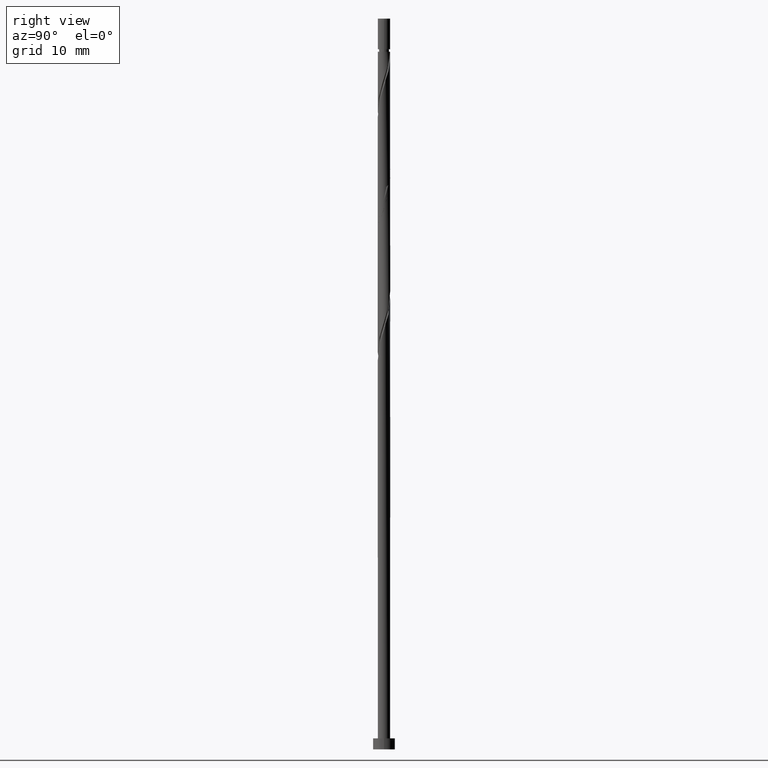
[diagram: clean part render]
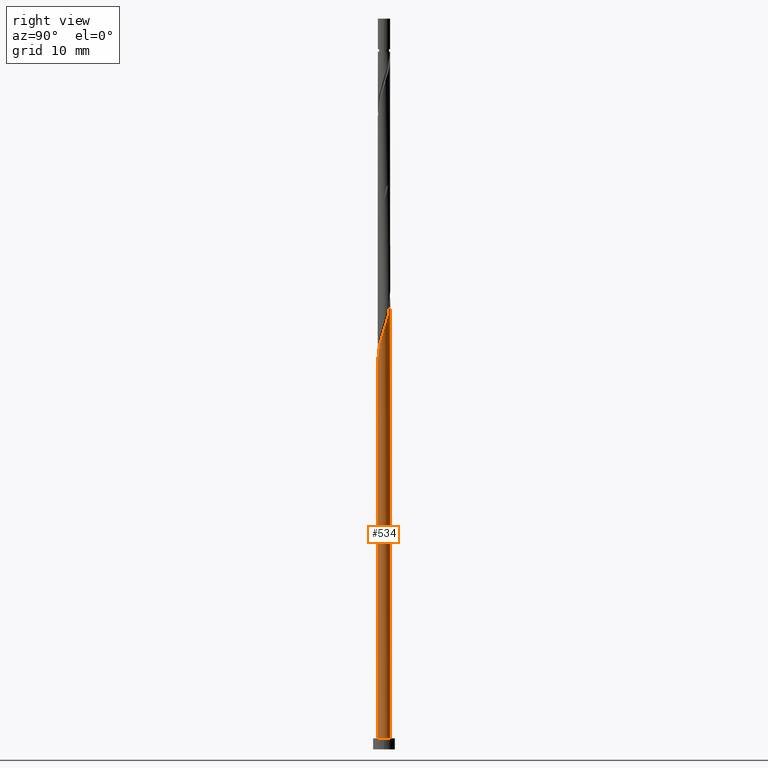
[diagram: same view with one face highlighted and labeled with its STEP entity id]
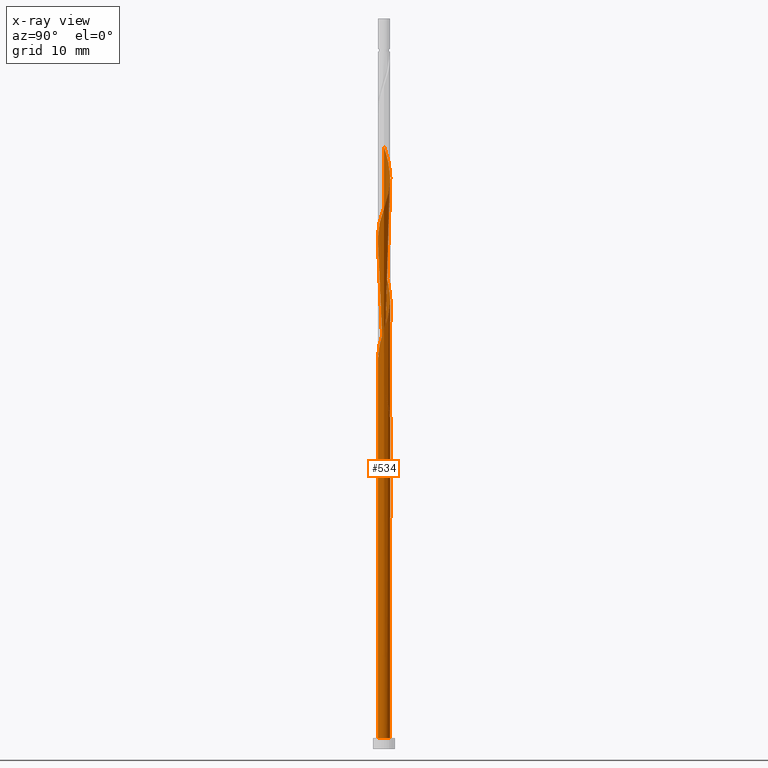
[diagram: x-ray of the same camera — body ghosted, the highlighted face saturated]
A machine part, right view. The second image highlights one B-rep face of the part: STEP entity #534.
The next image is the same camera in x-ray: the body ghosted, the highlighted face saturated — about 0% of this face is hidden behind the body in this view.
In plain terms, the highlighted cylindrical surface (bore or boss wall) has radius 0.85 mm, axis along (-0, -0, -1).
Its self-contained STEP definition (entity closure, byte-faithful):
#6 = CIRCLE ( 'NONE', #849, 0.8499999999999999778 ) ;
#17 = ORIENTED_EDGE ( 'NONE', *, *, #526, .F. ) ;
#18 = CARTESIAN_POINT ( 'NONE',  ( -0.5375555463659557054, 0.6752758173902464467, 47.77891091697247106 ) ) ;
#23 = VERTEX_POINT ( 'NONE', #1052 ) ;
#24 = CARTESIAN_POINT ( 'NONE',  ( -0.1259557794782407703, 0.8406159299085588232, 46.39002202808356401 ) ) ;
#30 = AXIS2_PLACEMENT_3D ( 'NONE', #94, #1262, #940 ) ;
#33 = LINE ( 'NONE', #450, #51 ) ;
#51 = VECTOR ( 'NONE', #771, 1000.000000000000000 ) ;
#53 = CARTESIAN_POINT ( 'NONE',  ( 0.8497170766525296015, 0.02192919617954579639, 57.50113313919468538 ) ) ;
#60 = CARTESIAN_POINT ( 'NONE',  ( -0.7583624014087694265, 0.4121284546235435275, 64.44557758363912114 ) ) ;
#67 = CARTESIAN_POINT ( 'NONE',  ( -0.1691478643081253119, 0.8330000000000012950, 62.13076276882432580 ) ) ;
#74 = CARTESIAN_POINT ( 'NONE',  ( 0.8059730935065011481, -0.2700136525132811882, 73.24187387993544007 ) ) ;
#79 = ORIENTED_EDGE ( 'NONE', *, *, #1117, .F. ) ;
#81 = CARTESIAN_POINT ( 'NONE',  ( 0.2741790483344559992, 0.8184065276103787978, 60.74187387993540455 ) ) ;
#94 = CARTESIAN_POINT ( 'NONE',  ( 0.000000000000000000, 0.000000000000000000, 1.500000000000000000 ) ) ;
#117 = CYLINDRICAL_SURFACE ( 'NONE', #315, 0.8499999999999999778 ) ;
#130 = VERTEX_POINT ( 'NONE', #845 ) ;
#131 = CARTESIAN_POINT ( 'NONE',  ( -0.6368252291983756974, 0.5629863474867208284, 48.24187387993542586 ) ) ;
#150 = CARTESIAN_POINT ( 'NONE',  ( -0.7909726398658113444, 0.3112270601726522257, 49.16779980586134968 ) ) ;
#163 = CARTESIAN_POINT ( 'NONE',  ( 0.1259557794782414086, 0.8406159299085583791, 61.20483684289838067 ) ) ;
#168 = CARTESIAN_POINT ( 'NONE',  ( -0.02226748937797391054, 0.8628253322067379605, 61.66779980586133547 ) ) ;
#174 = CARTESIAN_POINT ( 'NONE',  ( 0.7583624014087694265, -0.4121284546235436941, 72.77891091697244974 ) ) ;
#180 = CARTESIAN_POINT ( 'NONE',  ( -0.8059730935065011481, 0.2700136525132808551, 64.90854054660209727 ) ) ;
#187 = CARTESIAN_POINT ( 'NONE',  ( 0.6650168603875703521, -0.5293888697359065976, 55.64928128734284485 ) ) ;
#207 = DIRECTION ( 'NONE',  ( -1.000000000000000000, 0.000000000000000000, 0.000000000000000000 ) ) ;
#221 = EDGE_CURVE ( 'NONE', #130, #757, #6, .T. ) ;
#238 = CARTESIAN_POINT ( 'NONE',  ( -0.8500000000000010880, 0.01096642318221761198, 50.12760028321403638 ) ) ;
#249 = CARTESIAN_POINT ( 'NONE',  ( -0.8458503677008266664, -0.1717572427621095188, 49.63076276882431159 ) ) ;
#262 = CARTESIAN_POINT ( 'NONE',  ( -0.1259557794782409368, -0.8406159299085583791, 69.53817017623171637 ) ) ;
#268 = CARTESIAN_POINT ( 'NONE',  ( 0.7909726398658113444, 0.3112270601726519481, 58.42705906512062342 ) ) ;
#275 = CARTESIAN_POINT ( 'NONE',  ( -0.8535837856042325367, 0.1278988504030181550, 65.37150350956505918 ) ) ;
#281 = CARTESIAN_POINT ( 'NONE',  ( -0.1259557794782409368, -0.8406159299085583791, 52.87150350956506628 ) ) ;
#289 = CARTESIAN_POINT ( 'NONE',  ( -0.02226748937797391054, 0.8628253322067379605, 78.33446647252800688 ) ) ;
#315 = AXIS2_PLACEMENT_3D ( 'NONE', #329, #1256, #207 ) ;
#329 = CARTESIAN_POINT ( 'NONE',  ( 0.000000000000000000, 0.000000000000000000, 100.0000000000000000 ) ) ;
#335 = CARTESIAN_POINT ( 'NONE',  ( -0.8497170766525294905, 0.02192919617954577904, 50.09372573178726640 ) ) ;
#354 = CARTESIAN_POINT ( 'NONE',  ( -0.8500000000000010880, -0.01096642318221814107, 49.13392525443457259 ) ) ;
#368 = CARTESIAN_POINT ( 'NONE',  ( -0.3160282392382770533, 0.8031746677932639633, 62.59372573178725929 ) ) ;
#372 = CARTESIAN_POINT ( 'NONE',  ( -0.8059730935065011481, 0.2700136525132808551, 48.24187387993543297 ) ) ;
#373 = CARTESIAN_POINT ( 'NONE',  ( 0.1691478643081254229, -0.8330000000000012950, 70.46409610215765440 ) ) ;
#379 = CIRCLE ( 'NONE', #1322, 0.8499999999999999778 ) ;
#381 = CARTESIAN_POINT ( 'NONE',  ( 0.1691478643081254229, -0.8330000000000012950, 53.79742943549097589 ) ) ;
#387 = CARTESIAN_POINT ( 'NONE',  ( 0.7909726398658113444, 0.3112270601726519481, 75.09372573178728771 ) ) ;
#393 = CARTESIAN_POINT ( 'NONE',  ( -0.7360949120307958005, -0.4506968775831945995, 67.22335536141689261 ) ) ;
#410 = CARTESIAN_POINT ( 'NONE',  ( -0.8499999999999999778, 0.000000000000000000, 100.0000000000000000 ) ) ;
#416 = FACE_OUTER_BOUND ( 'NONE', #869, .T. ) ;
#419 =( BOUNDED_CURVE ( )  B_SPLINE_CURVE ( 2, ( #1291, #354, #1187, #249, #593, #1107, #1207, #712, #1131, #1016, #281, #1329, #381, #1114, #600, #1202, #187, #612, #684, #917, #53, #1011, #268, #705, #822, #1213, #1120, #81, #163, #168, #67, #368, #798, #808, #588, #60, #180, #275, #483, #793, #908, #393, #903, #1314, #477, #1023, #262, #1320, #373, #692, #472, #698, #1125, #174, #74, #493, #1225, #606, #387, #501, #1029, #813, #927, #1338, #1220, #289, #896, #1308, #1056, #932, #1163, #962, #1041, #540, #509 ),
 .UNSPECIFIED., .F., .T. ) 
 B_SPLINE_CURVE_WITH_KNOTS ( ( 3, 2, 2, 2, 2, 2, 2, 2, 2, 2, 2, 2, 2, 2, 2, 2, 2, 2, 2, 2, 2, 2, 2, 2, 2, 2, 2, 2, 2, 2, 2, 2, 2, 2, 2, 2, 2, 3 ),
 ( 0.05452480538552911815, 0.05555555555555558023, 0.06944444444444441977, 0.08333333333333337034, 0.09722222222222220989, 0.1111111111111111605, 0.1250000000000000000, 0.1388888888888888395, 0.1527777777777777901, 0.1666666666666666297, 0.1805555555555555802, 0.1944444444444444198, 0.2083333333333333703, 0.2222222222222222099, 0.2361111111111111605, 0.2500000000000000000, 0.2638888888888888395, 0.2777777777777777901, 0.2916666666666666297, 0.3055555555555555802, 0.3194444444444444198, 0.3333333333333333703, 0.3472222222222222099, 0.3611111111111111605, 0.3750000000000000000, 0.3888888888888888395, 0.4027777777777777901, 0.4166666666666666297, 0.4305555555555555802, 0.4444444444444444198, 0.4583333333333333703, 0.4722222222222222099, 0.4861111111111111605, 0.5000000000000000000, 0.5138888888888888395, 0.5277777777777777901, 0.5416666666666667407, 0.5545248053855293957 ),
 .UNSPECIFIED. ) 
 CURVE ( )  GEOMETRIC_REPRESENTATION_ITEM ( )  RATIONAL_B_SPLINE_CURVE ( ( 0.9071930855141252525, 0.9080659294509728641, 0.9090909090909129464, 0.8952797754656475204, 0.9090909090909129464, 0.8952797754656475204, 0.9090909090909129464, 0.8952797754656475204, 0.9090909090909129464, 0.8952797754656475204, 0.9090909090909129464, 0.8952797754656475204, 0.9090909090909129464, 0.8952797754656475204, 0.9090909090909129464, 0.8952797754656475204, 0.9090909090909129464, 0.8952797754656475204, 0.9090909090909129464, 0.8952797754656475204, 0.9090909090909129464, 0.8952797754656475204, 0.9090909090909129464, 0.8952797754656475204, 0.9090909090909129464, 0.8952797754656475204, 0.9090909090909129464, 0.8952797754656475204, 0.9090909090909129464, 0.8952797754656475204, 0.9090909090909129464, 0.8952797754656475204, 0.9090909090909129464, 0.8952797754656475204, 0.9090909090909129464, 0.8952797754656475204, 0.9090909090909129464, 0.8952797754656475204, 0.9090909090909129464, 0.8952797754656475204, 0.9090909090909129464, 0.8952797754656475204, 0.9090909090909129464, 0.8952797754656475204, 0.9090909090909129464, 0.8952797754656475204, 0.9090909090909129464, 0.8952797754656475204, 0.9090909090909129464, 0.8952797754656475204, 0.9090909090909129464, 0.8952797754656475204, 0.9090909090909129464, 0.8952797754656475204, 0.9090909090909129464, 0.8952797754656475204, 0.9090909090909129464, 0.8952797754656475204, 0.9090909090909129464, 0.8952797754656475204, 0.9090909090909129464, 0.8952797754656475204, 0.9090909090909129464, 0.8952797754656475204, 0.9090909090909129464, 0.8952797754656475204, 0.9090909090909129464, 0.8952797754656475204, 0.9090909090909129464, 0.8952797754656475204, 0.9090909090909129464, 0.8952797754656475204, 0.9090909090909129464, 0.8963047551055873807, 0.9071930855141256966 ) ) 
 REPRESENTATION_ITEM ( '' )  );
#443 = CARTESIAN_POINT ( 'NONE',  ( 0.1691478643081257283, 0.8330000000000011839, 45.46409610215764019 ) ) ;
#450 = CARTESIAN_POINT ( 'NONE',  ( -0.8499999999999999778, 0.000000000000000000, 100.0000000000000000 ) ) ;
#464 = CARTESIAN_POINT ( 'NONE',  ( -0.5716713193663710557, 0.6466492848482696676, 46.85298499104653303 ) ) ;
#472 = CARTESIAN_POINT ( 'NONE',  ( 0.4438497793023241100, -0.7249119763207672040, 71.39002202808357822 ) ) ;
#477 = CARTESIAN_POINT ( 'NONE',  ( -0.4058672973502057135, -0.7468411725003125667, 68.61224425030580676 ) ) ;
#483 = CARTESIAN_POINT ( 'NONE',  ( -0.8497170766525297125, -0.02192919617954571312, 65.83446647252802109 ) ) ;
#493 = CARTESIAN_POINT ( 'NONE',  ( 0.8535837856042325367, -0.1278988504030186824, 73.70483684289835935 ) ) ;
#501 = CARTESIAN_POINT ( 'NONE',  ( 0.7360949120307959115, 0.4506968775831940999, 75.55668869475022120 ) ) ;
#507 = CARTESIAN_POINT ( 'NONE',  ( -0.8500000000000010880, -5.508743914167051570E-16, 50.16161765714639387 ) ) ;
#509 = CARTESIAN_POINT ( 'NONE',  ( -0.8500000000000011990, -4.761795586822371041E-16, 82.43324121383555791 ) ) ;
#516 = VECTOR ( 'NONE', #838, 1000.000000000000000 ) ;
#526 = EDGE_CURVE ( 'NONE', #23, #1014, #419, .T. ) ;
#534 = ADVANCED_FACE ( 'NONE', ( #416 ), #117, .T. ) ;
#540 = CARTESIAN_POINT ( 'NONE',  ( -0.8500000000000017542, 0.1385962160473863392, 82.00332170146994315 ) ) ;
#549 = CARTESIAN_POINT ( 'NONE',  ( -0.8458503677008268884, 0.1717572427621096853, 49.63076276882430449 ) ) ;
#555 = CARTESIAN_POINT ( 'NONE',  ( -0.7360949120307959115, 0.4506968775831947660, 48.70483684289838067 ) ) ;
#566 = CARTESIAN_POINT ( 'NONE',  ( 0.02226748937797395564, 0.8628253322067380715, 45.92705906512059499 ) ) ;
#567 = EDGE_CURVE ( 'NONE', #1014, #1205, #1049, .T. ) ;
#585 = VERTEX_POINT ( 'NONE', #844 ) ;
#588 = CARTESIAN_POINT ( 'NONE',  ( -0.6650168603875703521, 0.5293888697359065976, 63.98261462067617344 ) ) ;
#593 = CARTESIAN_POINT ( 'NONE',  ( -0.7909726398658112334, -0.3112270601726522257, 50.09372573178728061 ) ) ;
#600 = CARTESIAN_POINT ( 'NONE',  ( 0.4438497793023241100, -0.7249119763207672040, 54.72335536141690682 ) ) ;
#606 = CARTESIAN_POINT ( 'NONE',  ( 0.8458503677008266664, 0.1717572427621094355, 74.63076276882431159 ) ) ;
#612 = CARTESIAN_POINT ( 'NONE',  ( 0.7583624014087694265, -0.4121284546235436941, 56.11224425030578544 ) ) ;
#644 = ORIENTED_EDGE ( 'NONE', *, *, #221, .T. ) ;
#653 = CARTESIAN_POINT ( 'NONE',  ( -0.2741790483344554996, 0.8184065276103794639, 46.85298499104653303 ) ) ;
#655 = EDGE_CURVE ( 'NONE', #585, #1288, #1208, .T. ) ;
#659 = CARTESIAN_POINT ( 'NONE',  ( -0.1691478643081252842, 0.8330000000000011839, 45.46409610215764019 ) ) ;
#665 = CARTESIAN_POINT ( 'NONE',  ( 0.000000000000000000, 0.000000000000000000, 1.500000000000000000 ) ) ;
#682 = ORIENTED_EDGE ( 'NONE', *, *, #901, .F. ) ;
#684 = CARTESIAN_POINT ( 'NONE',  ( 0.8059730935065011481, -0.2700136525132811882, 56.57520721326878288 ) ) ;
#692 = CARTESIAN_POINT ( 'NONE',  ( 0.3160282392382767758, -0.8031746677932642964, 70.92705906512060210 ) ) ;
#698 = CARTESIAN_POINT ( 'NONE',  ( 0.5716713193663708337, -0.6466492848482696676, 71.85298499104649750 ) ) ;
#705 = CARTESIAN_POINT ( 'NONE',  ( 0.7360949120307959115, 0.4506968775831940999, 58.89002202808356401 ) ) ;
#712 = CARTESIAN_POINT ( 'NONE',  ( -0.5375555463659554833, -0.6752758173902463357, 51.48261462067615213 ) ) ;
#720 = DIRECTION ( 'NONE',  ( -1.000000000000000000, 0.000000000000000000, 0.000000000000000000 ) ) ;
#744 = CARTESIAN_POINT ( 'NONE',  ( 0.000000000000000000, 0.000000000000000000, 45.46409610215764019 ) ) ;
#756 =( BOUNDED_CURVE ( )  B_SPLINE_CURVE ( 2, ( #1071, #238, #335, #549, #150, #555, #131, #18, #978, #653, #24, #566, #443 ),
 .UNSPECIFIED., .F., .T. ) 
 B_SPLINE_CURVE_WITH_KNOTS ( ( 3, 2, 2, 2, 2, 2, 3 ),
 ( 0.9295248053855290626, 0.9305555555555555802, 0.9444444444444444198, 0.9583333333333333703, 0.9722222222222222099, 0.9861111111111111605, 1.000000000000000000 ),
 .UNSPECIFIED. ) 
 CURVE ( )  GEOMETRIC_REPRESENTATION_ITEM ( )  RATIONAL_B_SPLINE_CURVE ( ( 0.9071930855141261407, 0.9080659294509737522, 0.9090909090909138346, 0.8952797754656482976, 0.9090909090909138346, 0.8952797754656482976, 0.9090909090909138346, 0.8952797754656482976, 0.9090909090909138346, 0.8952797754656482976, 0.9090909090909138346, 0.8952797754656482976, 0.9090909090909138346 ) ) 
 REPRESENTATION_ITEM ( '' )  );
#757 = VERTEX_POINT ( 'NONE', #850 ) ;
#771 = DIRECTION ( 'NONE',  ( -0.000000000000000000, -0.000000000000000000, -1.000000000000000000 ) ) ;
#793 = CARTESIAN_POINT ( 'NONE',  ( -0.8458503677008266664, -0.1717572427621095188, 66.29742943549096879 ) ) ;
#798 = CARTESIAN_POINT ( 'NONE',  ( -0.4438497793023241655, 0.7249119763207672040, 63.05668869475022831 ) ) ;
#800 =( BOUNDED_CURVE ( )  B_SPLINE_CURVE ( 2, ( #659, #1092, #1289, #464, #887, #1298, #372, #1336, #1307 ),
 .UNSPECIFIED., .F., .T. ) 
 B_SPLINE_CURVE_WITH_KNOTS ( ( 3, 2, 2, 2, 3 ),
 ( 0.000000000000000000, 0.01388888888888884128, 0.02777777777777779011, 0.04166666666666662966, 0.05452480538552911815 ),
 .UNSPECIFIED. ) 
 CURVE ( )  GEOMETRIC_REPRESENTATION_ITEM ( )  RATIONAL_B_SPLINE_CURVE ( ( 0.9090909090909129464, 0.8952797754656475204, 0.9090909090909129464, 0.8952797754656475204, 0.9090909090909129464, 0.8952797754656475204, 0.9090909090909129464, 0.8963047551055876028, 0.9071930855141252525 ) ) 
 REPRESENTATION_ITEM ( '' )  );
#808 = CARTESIAN_POINT ( 'NONE',  ( -0.5716713193663710557, 0.6466492848482696676, 63.51965165771319022 ) ) ;
#813 = CARTESIAN_POINT ( 'NONE',  ( 0.5375555463659555944, 0.6752758173902461136, 76.48261462067617344 ) ) ;
#822 = CARTESIAN_POINT ( 'NONE',  ( 0.6368252291983756974, 0.5629863474867206063, 59.35298499104653303 ) ) ;
#838 = DIRECTION ( 'NONE',  ( -0.000000000000000000, -0.000000000000000000, -1.000000000000000000 ) ) ;
#844 = CARTESIAN_POINT ( 'NONE',  ( 0.8499999999999999778, 0.000000000000000000, 1.500000000000000000 ) ) ;
#845 = CARTESIAN_POINT ( 'NONE',  ( -0.1691478643081252842, 0.8330000000000011839, 45.46409610215764019 ) ) ;
#849 = AXIS2_PLACEMENT_3D ( 'NONE', #744, #1159, #720 ) ;
#850 = CARTESIAN_POINT ( 'NONE',  ( 0.1691478643081257283, 0.8330000000000011839, 45.46409610215764019 ) ) ;
#853 = EDGE_CURVE ( 'NONE', #23, #1288, #33, .T. ) ;
#865 = CARTESIAN_POINT ( 'NONE',  ( -0.8500000000000011990, -4.761795586822371041E-16, 82.43324121383555791 ) ) ;
#869 = EDGE_LOOP ( 'NONE', ( #1184, #17, #1123, #1009, #1075, #1112, #79, #644, #682 ) ) ;
#887 = CARTESIAN_POINT ( 'NONE',  ( -0.6650168603875703521, 0.5293888697359065976, 47.31594795400951625 ) ) ;
#896 = CARTESIAN_POINT ( 'NONE',  ( -0.1691478643081253119, 0.8330000000000012950, 78.79742943549099721 ) ) ;
#901 = EDGE_CURVE ( 'NONE', #1205, #757, #756, .T. ) ;
#903 = CARTESIAN_POINT ( 'NONE',  ( -0.6368252291983758084, -0.5629863474867202733, 67.68631832437986873 ) ) ;
#908 = CARTESIAN_POINT ( 'NONE',  ( -0.7909726398658112334, -0.3112270601726522257, 66.76039239845394491 ) ) ;
#917 = CARTESIAN_POINT ( 'NONE',  ( 0.8535837856042325367, -0.1278988504030186824, 57.03817017623172347 ) ) ;
#927 = CARTESIAN_POINT ( 'NONE',  ( 0.4058672973502058801, 0.7468411725003124557, 76.94557758363913536 ) ) ;
#931 = CARTESIAN_POINT ( 'NONE',  ( -0.8499999999999999778, 0.000000000000000000, 1.500000000000000000 ) ) ;
#932 = CARTESIAN_POINT ( 'NONE',  ( -0.5716713193663710557, 0.6466492848482696676, 80.18631832437986873 ) ) ;
#940 = DIRECTION ( 'NONE',  ( 1.000000000000000000, 0.000000000000000000, 0.000000000000000000 ) ) ;
#948 = EDGE_CURVE ( 'NONE', #1288, #585, #379, .T. ) ;
#962 = CARTESIAN_POINT ( 'NONE',  ( -0.7583624014087694265, 0.4121284546235435275, 81.11224425030580676 ) ) ;
#978 = CARTESIAN_POINT ( 'NONE',  ( -0.4058672973502056580, 0.7468411725003126778, 47.31594795400949494 ) ) ;
#999 = DIRECTION ( 'NONE',  ( 1.000000000000000000, 0.000000000000000000, 0.000000000000000000 ) ) ;
#1009 = ORIENTED_EDGE ( 'NONE', *, *, #948, .T. ) ;
#1011 = CARTESIAN_POINT ( 'NONE',  ( 0.8458503677008266664, 0.1717572427621094355, 57.96409610215764019 ) ) ;
#1014 = VERTEX_POINT ( 'NONE', #865 ) ;
#1016 = CARTESIAN_POINT ( 'NONE',  ( -0.2741790483344554441, -0.8184065276103789088, 52.40854054660208305 ) ) ;
#1023 = CARTESIAN_POINT ( 'NONE',  ( -0.2741790483344554441, -0.8184065276103789088, 69.07520721326875446 ) ) ;
#1029 = CARTESIAN_POINT ( 'NONE',  ( 0.6368252291983756974, 0.5629863474867206063, 76.01965165771321153 ) ) ;
#1041 = CARTESIAN_POINT ( 'NONE',  ( -0.8059730935065011481, 0.2700136525132808551, 81.57520721326875446 ) ) ;
#1049 = LINE ( 'NONE', #410, #516 ) ;
#1052 = CARTESIAN_POINT ( 'NONE',  ( -0.8500000000000011990, 6.199671116960892277E-16, 49.09990788050220800 ) ) ;
#1056 = CARTESIAN_POINT ( 'NONE',  ( -0.4438497793023241655, 0.7249119763207672040, 79.72335536141692103 ) ) ;
#1071 = CARTESIAN_POINT ( 'NONE',  ( -0.8500000000000010880, -5.508743914167051570E-16, 50.16161765714639387 ) ) ;
#1075 = ORIENTED_EDGE ( 'NONE', *, *, #655, .T. ) ;
#1092 = CARTESIAN_POINT ( 'NONE',  ( -0.3160282392382770533, 0.8031746677932639633, 45.92705906512060920 ) ) ;
#1107 = CARTESIAN_POINT ( 'NONE',  ( -0.7360949120307958005, -0.4506968775831945995, 50.55668869475022831 ) ) ;
#1112 = ORIENTED_EDGE ( 'NONE', *, *, #853, .F. ) ;
#1114 = CARTESIAN_POINT ( 'NONE',  ( 0.3160282392382767758, -0.8031746677932642964, 54.26039239845393070 ) ) ;
#1117 = EDGE_CURVE ( 'NONE', #130, #23, #800, .T. ) ;
#1120 = CARTESIAN_POINT ( 'NONE',  ( 0.4058672973502058801, 0.7468411725003124557, 60.27891091697247816 ) ) ;
#1123 = ORIENTED_EDGE ( 'NONE', *, *, #853, .T. ) ;
#1125 = CARTESIAN_POINT ( 'NONE',  ( 0.6650168603875703521, -0.5293888697359065976, 72.31594795400951625 ) ) ;
#1131 = CARTESIAN_POINT ( 'NONE',  ( -0.4058672973502057135, -0.7468411725003125667, 51.94557758363912825 ) ) ;
#1159 = DIRECTION ( 'NONE',  ( 0.000000000000000000, -0.000000000000000000, -1.000000000000000000 ) ) ;
#1163 = CARTESIAN_POINT ( 'NONE',  ( -0.6650168603875703521, 0.5293888697359065976, 80.64928128734288748 ) ) ;
#1184 = ORIENTED_EDGE ( 'NONE', *, *, #567, .F. ) ;
#1187 = CARTESIAN_POINT ( 'NONE',  ( -0.8497170766525297125, -0.02192919617954571312, 49.16779980586134258 ) ) ;
#1202 = CARTESIAN_POINT ( 'NONE',  ( 0.5716713193663708337, -0.6466492848482696676, 55.18631832437986873 ) ) ;
#1205 = VERTEX_POINT ( 'NONE', #507 ) ;
#1207 = CARTESIAN_POINT ( 'NONE',  ( -0.6368252291983758084, -0.5629863474867202733, 51.01965165771319732 ) ) ;
#1208 = CIRCLE ( 'NONE', #30, 0.8499999999999999778 ) ;
#1213 = CARTESIAN_POINT ( 'NONE',  ( 0.5375555463659555944, 0.6752758173902461136, 59.81594795400948072 ) ) ;
#1220 = CARTESIAN_POINT ( 'NONE',  ( 0.1259557794782414086, 0.8406159299085583791, 77.87150350956504496 ) ) ;
#1225 = CARTESIAN_POINT ( 'NONE',  ( 0.8497170766525296015, 0.02192919617954579639, 74.16779980586136389 ) ) ;
#1256 = DIRECTION ( 'NONE',  ( -0.000000000000000000, -0.000000000000000000, -1.000000000000000000 ) ) ;
#1262 = DIRECTION ( 'NONE',  ( 0.000000000000000000, 0.000000000000000000, 1.000000000000000000 ) ) ;
#1275 = DIRECTION ( 'NONE',  ( 0.000000000000000000, 0.000000000000000000, 1.000000000000000000 ) ) ;
#1288 = VERTEX_POINT ( 'NONE', #931 ) ;
#1289 = CARTESIAN_POINT ( 'NONE',  ( -0.4438497793023241655, 0.7249119763207672040, 46.39002202808357822 ) ) ;
#1291 = CARTESIAN_POINT ( 'NONE',  ( -0.8500000000000011990, 6.199671116960892277E-16, 49.09990788050220800 ) ) ;
#1298 = CARTESIAN_POINT ( 'NONE',  ( -0.7583624014087694265, 0.4121284546235435275, 47.77891091697246395 ) ) ;
#1307 = CARTESIAN_POINT ( 'NONE',  ( -0.8500000000000011990, 6.199671116960892277E-16, 49.09990788050220800 ) ) ;
#1308 = CARTESIAN_POINT ( 'NONE',  ( -0.3160282392382770533, 0.8031746677932639633, 79.26039239845395912 ) ) ;
#1314 = CARTESIAN_POINT ( 'NONE',  ( -0.5375555463659554833, -0.6752758173902463357, 68.14928128734278800 ) ) ;
#1320 = CARTESIAN_POINT ( 'NONE',  ( 0.02226748937797368502, -0.8628253322067379605, 70.00113313919469249 ) ) ;
#1322 = AXIS2_PLACEMENT_3D ( 'NONE', #665, #1275, #999 ) ;
#1329 = CARTESIAN_POINT ( 'NONE',  ( 0.02226748937797368502, -0.8628253322067379605, 53.33446647252801398 ) ) ;
#1336 = CARTESIAN_POINT ( 'NONE',  ( -0.8500000000000011990, 0.1385962160473879490, 48.66998836813659324 ) ) ;
#1338 = CARTESIAN_POINT ( 'NONE',  ( 0.2741790483344559992, 0.8184065276103787978, 77.40854054660209727 ) ) ;